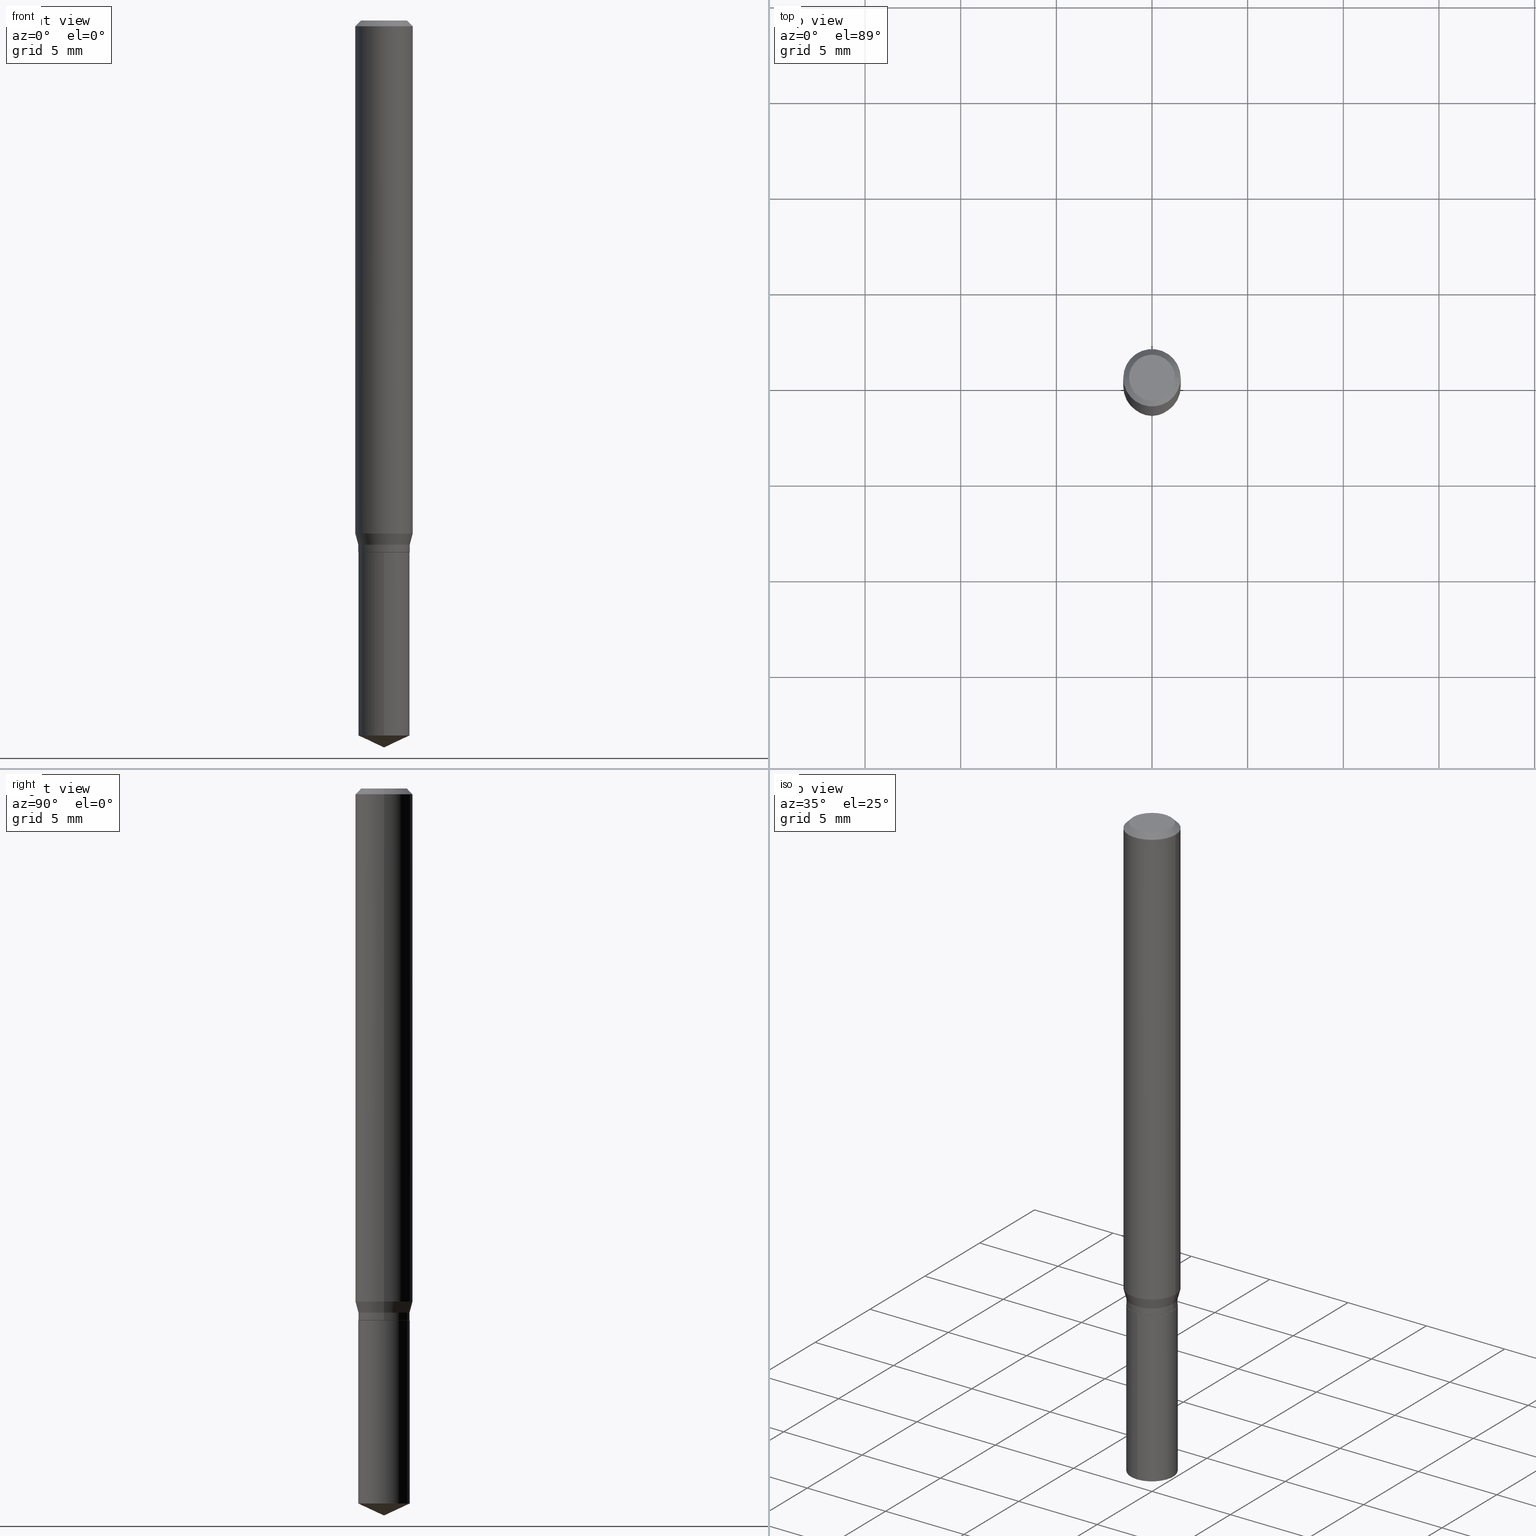
[diagram: canonical four-view strip — front | top / right | iso, engineering-drawing reading convention]
A machine part, canonical four-view strip (front | top / right | iso — engineering-drawing reading convention). The complete STEP part file that produces these views, byte-faithful:
ISO-10303-21;
HEADER;
FILE_DESCRIPTION (( 'STEP AP203' ),
    '1' );
FILE_NAME ('08027.STEP',
    '2024-04-24T09:15:37',
    ( '' ),
    ( '' ),
    'SwSTEP 2.0',
    'SolidWorks 2023',
    '' );
FILE_SCHEMA (( 'CONFIG_CONTROL_DESIGN' ));
ENDSEC;

DATA;
#1 = EDGE_CURVE ( 'NONE', #443, #419, #152, .T. ) ;
#2 = FACE_OUTER_BOUND ( 'NONE', #179, .T. ) ;
#3 = VECTOR ( 'NONE', #352, 39.37007874015748143 ) ;
#4 = CC_DESIGN_APPROVAL ( #400, ( #302 ) ) ;
#5 = ORIENTED_EDGE ( 'NONE', *, *, #410, .T. ) ;
#6 =( NAMED_UNIT ( * ) PLANE_ANGLE_UNIT ( ) SI_UNIT ( $, .RADIAN. ) );
#7 = DIRECTION ( 'NONE',  ( -2.445458899330790108E-29, 3.491495526022433205E-15, 1.000000000000000000 ) ) ;
#8 = DIRECTION ( 'NONE',  ( 0.2588190451025216277, 1.565188264969619995E-15, 0.9659258262890679791 ) ) ;
#9 = VECTOR ( 'NONE', #453, 39.37007874015748143 ) ;
#10 = DIRECTION ( 'NONE',  ( 1.000000000000000000, -6.982962677686265922E-15, 4.876176775795935232E-29 ) ) ;
#11 = DIRECTION ( 'NONE',  ( -1.000000000000000000, 6.982962677686265922E-15, -4.876176775795935793E-29 ) ) ;
#12 = EDGE_CURVE ( 'NONE', #145, #96, #191, .T. ) ;
#13 = DIRECTION ( 'NONE',  ( -2.445468806185136597E-29, 3.491481338843145583E-15, 1.000000000000000000 ) ) ;
#14 = EDGE_CURVE ( 'NONE', #332, #61, #310, .T. ) ;
#15 = PRODUCT_DEFINITION_SHAPE ( 'NONE', 'NONE',  #141 ) ;
#16 = FACE_OUTER_BOUND ( 'NONE', #413, .T. ) ;
#17 = CARTESIAN_POINT ( 'NONE',  ( -0.05905000000000006771, 4.195754854663396409E-16, -2.904631170795525045E-30 ) ) ;
#18 = CC_DESIGN_PERSON_AND_ORGANIZATION_ASSIGNMENT ( #161, #82, ( #302 ) ) ;
#19 = CARTESIAN_POINT ( 'NONE',  ( 0.05244999999999998969, -4.187682717808466844E-15, -1.094499999999999806 ) ) ;
#20 = DIRECTION ( 'NONE',  ( 0.7071067811866199593, -2.468850131083015945E-15, 0.7071067811864750752 ) ) ;
#21 = EDGE_LOOP ( 'NONE', ( #137, #291, #233, #140 ) ) ;
#22 = VECTOR ( 'NONE', #25, 39.37007874015748143 ) ;
#23 = DIRECTION ( 'NONE',  ( 1.000000000000000000, -6.982962677686262766E-15, 0.000000000000000000 ) ) ;
#24 = EDGE_LOOP ( 'NONE', ( #340, #411, #214, #229 ) ) ;
#25 = DIRECTION ( 'NONE',  ( -0.7071067811866199593, 7.493145998870616062E-15, 0.7071067811864750752 ) ) ;
#26 = EDGE_LOOP ( 'NONE', ( #450, #460, #344, #359 ) ) ;
#27 = DIRECTION ( 'NONE',  ( -2.445468806185136597E-29, 3.491481338843145583E-15, 1.000000000000000000 ) ) ;
#28 = ORIENTED_EDGE ( 'NONE', *, *, #436, .T. ) ;
#29 = CLOSED_SHELL ( 'NONE', ( #222, #461, #163, #177, #196 ) ) ;
#30 = CIRCLE ( 'NONE', #438, 0.05294999999999999707 ) ;
#31 = EDGE_CURVE ( 'NONE', #104, #371, #250, .T. ) ;
#32 = CARTESIAN_POINT ( 'NONE',  ( 2.676565608369631234E-29, -3.821426325363821984E-15, -1.094499999999999806 ) ) ;
#33 = ORIENTED_EDGE ( 'NONE', *, *, #393, .T. ) ;
#34 = DIRECTION ( 'NONE',  ( -2.445468806185136597E-29, 3.491481338843145583E-15, 1.000000000000000000 ) ) ;
#35 = DIRECTION ( 'NONE',  ( 1.000000000000000000, -6.982962677686265133E-15, 0.000000000000000000 ) ) ;
#36 = PERSON_AND_ORGANIZATION_ROLE ( 'creator' ) ;
#37 = ORIENTED_EDGE ( 'NONE', *, *, #426, .T. ) ;
#38 = CIRCLE ( 'NONE', #338, 0.05244999999999998969 ) ;
#39 = APPROVAL_STATUS ( 'not_yet_approved' ) ;
#40 = ORIENTED_EDGE ( 'NONE', *, *, #484, .T. ) ;
#41 = EDGE_CURVE ( 'NONE', #345, #488, #424, .T. ) ;
#42 = DIRECTION ( 'NONE',  ( -6.982962677686265922E-15, -1.000000000000000000, 5.159297438459420627E-15 ) ) ;
#43 = ORIENTED_EDGE ( 'NONE', *, *, #110, .F. ) ;
#44 = CARTESIAN_POINT ( 'NONE',  ( 3.598281099891054021E-29, -5.137402445753038506E-15, -1.471409009500692866 ) ) ;
#45 = CONICAL_SURFACE ( 'NONE', #360, 0.05244999999999998969, 0.7853981633975507526 ) ;
#46 = PRODUCT_DEFINITION_FORMATION_WITH_SPECIFIED_SOURCE ( 'ANY', '', #315, .NOT_KNOWN. ) ;
#47 = DIRECTION ( 'NONE',  ( -2.445468806185136597E-29, 3.491481338843145583E-15, 1.000000000000000000 ) ) ;
#48 = CARTESIAN_POINT ( 'NONE',  ( 2.676565608369631794E-29, -3.821426325363822773E-15, -1.094499999999999806 ) ) ;
#49 = CARTESIAN_POINT ( 'NONE',  ( -9.261924752013118283E-28, 1.322368428517963298E-13, 37.87397874015748300 ) ) ;
#50 = EDGE_CURVE ( 'NONE', #488, #483, #157, .T. ) ;
#51 = CYLINDRICAL_SURFACE ( 'NONE', #108, 0.05294999999999999707 ) ;
#52 = LOCAL_TIME ( 5, 15, 37.00000000000000000, #184 ) ;
#53 = CC_DESIGN_PERSON_AND_ORGANIZATION_ASSIGNMENT ( #373, #119, ( #141 ) ) ;
#54 = FACE_OUTER_BOUND ( 'NONE', #134, .T. ) ;
#55 = FACE_OUTER_BOUND ( 'NONE', #335, .T. ) ;
#56 = ORIENTED_EDGE ( 'NONE', *, *, #160, .F. ) ;
#57 = ADVANCED_FACE ( 'NONE', ( #221 ), #209, .T. ) ;
#58 = DIRECTION ( 'NONE',  ( -2.445468806185136597E-29, 3.491481338843145583E-15, 1.000000000000000000 ) ) ;
#59 = VECTOR ( 'NONE', #154, 39.37007874015748143 ) ;
#60 = VECTOR ( 'NONE', #398, 39.37007874015748143 ) ;
#61 = VERTEX_POINT ( 'NONE', #193 ) ;
#62 = CARTESIAN_POINT ( 'NONE',  ( -9.261924752013118283E-28, 1.322368428517963298E-13, 37.87397874015748300 ) ) ;
#63 = ORIENTED_EDGE ( 'NONE', *, *, #304, .T. ) ;
#64 = DIRECTION ( 'NONE',  ( 1.000000000000000000, -6.982962677686261977E-15, 0.000000000000000000 ) ) ;
#65 = ORIENTED_EDGE ( 'NONE', *, *, #66, .F. ) ;
#66 = EDGE_CURVE ( 'NONE', #371, #345, #147, .T. ) ;
#67 = CARTESIAN_POINT ( 'NONE',  ( 0.05904999999999999832, -4.463468013801466955E-16, -0.01181000000000007218 ) ) ;
#68 = ORIENTED_EDGE ( 'NONE', *, *, #31, .T. ) ;
#69 = AXIS2_PLACEMENT_3D ( 'NONE', #44, #342, #42 ) ;
#70 = APPROVAL_PERSON_ORGANIZATION ( #456, #465, #382 ) ;
#71 = EDGE_LOOP ( 'NONE', ( #56, #68, #174, #43 ) ) ;
#72 = CARTESIAN_POINT ( 'NONE',  ( 0.05904999999999999832, -4.535783407291118600E-16, -0.01181000000000007218 ) ) ;
#73 = CYLINDRICAL_SURFACE ( 'NONE', #414, 0.05905000000000006771 ) ;
#74 = PERSON_AND_ORGANIZATION ( #94, #109 ) ;
#75 = ADVANCED_FACE ( 'NONE', ( #232 ), #81, .T. ) ;
#76 = DIRECTION ( 'NONE',  ( -2.445468806185136877E-29, 3.491481338843145188E-15, 1.000000000000000000 ) ) ;
#77 = PERSON_AND_ORGANIZATION_ROLE ( 'design_owner' ) ;
#78 = ORIENTED_EDGE ( 'NONE', *, *, #393, .F. ) ;
#79 = ORIENTED_EDGE ( 'NONE', *, *, #149, .T. ) ;
#80 = PERSON_AND_ORGANIZATION ( #94, #109 ) ;
#81 = CYLINDRICAL_SURFACE ( 'NONE', #84, 0.05294999999999999707 ) ;
#82 = PERSON_AND_ORGANIZATION_ROLE ( 'classification_officer' ) ;
#83 = CARTESIAN_POINT ( 'NONE',  ( 3.658651059288795076E-29, -5.223626456482161457E-15, -1.496099999999999985 ) ) ;
#84 = AXIS2_PLACEMENT_3D ( 'NONE', #307, #385, #10 ) ;
#85 = VECTOR ( 'NONE', #20, 39.37007874015748143 ) ;
#86 = CC_DESIGN_SECURITY_CLASSIFICATION ( #302, ( #46 ) ) ;
#87 = CARTESIAN_POINT ( 'NONE',  ( 0.05244999999999998969, -4.187682717808466844E-15, -1.094499999999999806 ) ) ;
#88 = ADVANCED_FACE ( 'NONE', ( #2 ), #73, .T. ) ;
#89 = CARTESIAN_POINT ( 'NONE',  ( 3.762323785850089208E-16, 0.05294999999999484841, -1.471409009500693088 ) ) ;
#90 = CARTESIAN_POINT ( 'NONE',  ( 0.000000000000000000, 0.000000000000000000, 0.000000000000000000 ) ) ;
#91 = CC_DESIGN_DATE_AND_TIME_ASSIGNMENT ( #473, #475, ( #302 ) ) ;
#92 = APPLICATION_CONTEXT ( 'configuration controlled 3d designs of mechanical parts and assemblies' ) ;
#93 = CARTESIAN_POINT ( 'NONE',  ( 3.658672935554494692E-29, -5.223595400746700193E-15, -1.496099999999999985 ) ) ;
#94 = PERSON ( 'UNSPECIFIED', 'UNSPECIFIED', 'UNSPECIFIED', ('UNSPECIFIED'), ('UNSPECIFIED'), ('UNSPECIFIED') ) ;
#95 = CARTESIAN_POINT ( 'NONE',  ( 2.637682654351288218E-29, -3.765911772076216593E-15, -1.078600000000000003 ) ) ;
#96 = VERTEX_POINT ( 'NONE', #261 ) ;
#97 = EDGE_CURVE ( 'NONE', #488, #328, #478, .T. ) ;
#98 = CARTESIAN_POINT ( 'NONE',  ( 2.888098660104664204E-31, -4.123439461173780263E-17, -0.01181000000000007218 ) ) ;
#99 = ORIENTED_EDGE ( 'NONE', *, *, #287, .F. ) ;
#100 = CARTESIAN_POINT ( 'NONE',  ( -0.05905000000000013016, -3.266850933533403500E-15, -1.055834490073829457 ) ) ;
#101 = CLOSED_SHELL ( 'NONE', ( #219, #405, #88, #251, #283, #75, #333, #296, #57, #121, #205, #357 ) ) ;
#102 = EDGE_LOOP ( 'NONE', ( #63, #289 ) ) ;
#103 = LINE ( 'NONE', #286, #276 ) ;
#104 = VERTEX_POINT ( 'NONE', #303 ) ;
#105 = CARTESIAN_POINT ( 'NONE',  ( 0.05294999999999999707, -4.189428458477888347E-15, -1.093999999999999861 ) ) ;
#106 = ORIENTED_EDGE ( 'NONE', *, *, #470, .T. ) ;
#107 = CARTESIAN_POINT ( 'NONE',  ( 0.000000000000000000, 0.000000000000000000, 0.000000000000000000 ) ) ;
#108 = AXIS2_PLACEMENT_3D ( 'NONE', #351, #468, #123 ) ;
#109 = ORGANIZATION ( 'UNSPECIFIED', 'UNSPECIFIED', '' ) ;
#110 = EDGE_CURVE ( 'NONE', #463, #345, #420, .T. ) ;
#111 = CALENDAR_DATE ( 2024, 24, 4 ) ;
#112 = DIRECTION ( 'NONE',  ( -2.445468806185136597E-29, 3.491481338843145583E-15, 1.000000000000000000 ) ) ;
#113 = CARTESIAN_POINT ( 'NONE',  ( 0.05905000000000013016, -4.098770365117118307E-15, -1.055834490073829457 ) ) ;
#114 = ORIENTED_EDGE ( 'NONE', *, *, #372, .T. ) ;
#115 = CARTESIAN_POINT ( 'NONE',  ( -0.05294999999999999707, -3.416563799800335904E-15, -1.078600000000000003 ) ) ;
#116 = ORIENTED_EDGE ( 'NONE', *, *, #426, .F. ) ;
#117 = AXIS2_PLACEMENT_3D ( 'NONE', #390, #355, #397 ) ;
#118 = ORIENTED_EDGE ( 'NONE', *, *, #50, .F. ) ;
#119 = PERSON_AND_ORGANIZATION_ROLE ( 'creator' ) ;
#120 = CARTESIAN_POINT ( 'NONE',  ( 0.05294999999999999707, -3.697478737834877679E-16, 2.581935602783947644E-30 ) ) ;
#121 = ADVANCED_FACE ( 'NONE', ( #263 ), #418, .F. ) ;
#122 = APPROVAL_DATE_TIME ( #427, #400 ) ;
#123 = DIRECTION ( 'NONE',  ( -6.982962677686265922E-15, -1.000000000000000000, 2.579648719229710314E-15 ) ) ;
#124 = DIRECTION ( 'NONE',  ( -2.445468806185136597E-29, 3.491481338843145583E-15, 1.000000000000000000 ) ) ;
#125 = CIRCLE ( 'NONE', #237, 0.05294999999999999707 ) ;
#126 = DIRECTION ( 'NONE',  ( 6.439704144417028775E-15, 0.9063077870366519351, 0.4226182617406950559 ) ) ;
#127 = APPROVAL ( #146, 'UNSPECIFIED' ) ;
#128 = FACE_OUTER_BOUND ( 'NONE', #245, .T. ) ;
#129 = FACE_OUTER_BOUND ( 'NONE', #257, .T. ) ;
#130 = VECTOR ( 'NONE', #8, 39.37007874015748143 ) ;
#131 = DIRECTION ( 'NONE',  ( -2.445468806185136597E-29, 3.491481338843145583E-15, 1.000000000000000000 ) ) ;
#132 =( GEOMETRIC_REPRESENTATION_CONTEXT ( 3 ) GLOBAL_UNCERTAINTY_ASSIGNED_CONTEXT ( ( #471 ) ) GLOBAL_UNIT_ASSIGNED_CONTEXT ( ( #223, #6, #153 ) ) REPRESENTATION_CONTEXT ( 'NONE', 'WORKASPACE' ) );
#133 = DIRECTION ( 'NONE',  ( -2.445468806185136597E-29, 3.491481338843145583E-15, 1.000000000000000000 ) ) ;
#134 = EDGE_LOOP ( 'NONE', ( #185, #33 ) ) ;
#135 = CC_DESIGN_PERSON_AND_ORGANIZATION_ASSIGNMENT ( #375, #36, ( #46 ) ) ;
#136 = LINE ( 'NONE', #67, #227 ) ;
#137 = ORIENTED_EDGE ( 'NONE', *, *, #441, .F. ) ;
#138 = DIRECTION ( 'NONE',  ( 1.000000000000000000, -6.982962677686266711E-15, 4.876176775795936353E-29 ) ) ;
#139 = AXIS2_PLACEMENT_3D ( 'NONE', #422, #383, #305 ) ;
#140 = ORIENTED_EDGE ( 'NONE', *, *, #1, .F. ) ;
#141 = PRODUCT_DEFINITION ( 'UNKNOWN', '', #46, #278 ) ;
#142 = CARTESIAN_POINT ( 'NONE',  ( 2.676565608369631234E-29, -3.821426325363821984E-15, -1.094499999999999806 ) ) ;
#143 = ORIENTED_EDGE ( 'NONE', *, *, #41, .F. ) ;
#144 = DIRECTION ( 'NONE',  ( 0.000000000000000000, 0.000000000000000000, 1.000000000000000000 ) ) ;
#145 = VERTEX_POINT ( 'NONE', #89 ) ;
#146 = APPROVAL_STATUS ( 'not_yet_approved' ) ;
#147 = LINE ( 'NONE', #120, #59 ) ;
#148 = CONICAL_SURFACE ( 'NONE', #428, 0.05294999999999999707, 0.2617993877991502960 ) ;
#149 = EDGE_CURVE ( 'NONE', #155, #145, #435, .T. ) ;
#150 = AXIS2_PLACEMENT_3D ( 'NONE', #482, #365, #64 ) ;
#151 =( LENGTH_UNIT ( ) NAMED_UNIT ( * ) SI_UNIT ( $, .METRE. ) );
#152 = LINE ( 'NONE', #265, #9 ) ;
#153 =( NAMED_UNIT ( * ) SI_UNIT ( $, .STERADIAN. ) SOLID_ANGLE_UNIT ( ) );
#154 = DIRECTION ( 'NONE',  ( -2.445468806185136877E-29, 3.491481338843145188E-15, 1.000000000000000000 ) ) ;
#155 = VERTEX_POINT ( 'NONE', #239 ) ;
#156 = CARTESIAN_POINT ( 'NONE',  ( 2.888098660104664204E-31, -4.123439461173780263E-17, -0.01181000000000007218 ) ) ;
#157 = LINE ( 'NONE', #309, #198 ) ;
#158 = FACE_OUTER_BOUND ( 'NONE', #406, .T. ) ;
#159 = LINE ( 'NONE', #17, #3 ) ;
#160 = EDGE_CURVE ( 'NONE', #104, #463, #350, .T. ) ;
#161 = PERSON_AND_ORGANIZATION ( #94, #109 ) ;
#162 = DIRECTION ( 'NONE',  ( 1.000000000000000000, -6.982962677686262766E-15, 0.000000000000000000 ) ) ;
#163 = ADVANCED_FACE ( 'NONE', ( #129 ), #486, .T. ) ;
#164 = AXIS2_PLACEMENT_3D ( 'NONE', #319, #167, #206 ) ;
#165 = CONICAL_SURFACE ( 'NONE', #389, 84.42940631927426409, 1.134464013796315562 ) ;
#166 = APPROVAL_STATUS ( 'not_yet_approved' ) ;
#167 = DIRECTION ( 'NONE',  ( -2.438088387897960049E-29, 3.491481338843145188E-15, 1.000000000000000000 ) ) ;
#168 = PLANE ( 'NONE',  #377 ) ;
#169 = DIRECTION ( 'NONE',  ( 1.000000000000000000, -6.982962677686262766E-15, 0.000000000000000000 ) ) ;
#170 = ORIENTED_EDGE ( 'NONE', *, *, #337, .F. ) ;
#171 = AXIS2_PLACEMENT_3D ( 'NONE', #449, #133, #138 ) ;
#172 = DIRECTION ( 'NONE',  ( -0.2588190451025216277, 5.211531920934551831E-15, 0.9659258262890679791 ) ) ;
#173 = LOCAL_TIME ( 5, 15, 37.00000000000000000, #434 ) ;
#174 = ORIENTED_EDGE ( 'NONE', *, *, #66, .T. ) ;
#175 = CARTESIAN_POINT ( 'NONE',  ( -3.697478737834609959E-16, -0.05295000000000382040, -1.094499999999999806 ) ) ;
#176 = VERTEX_POINT ( 'NONE', #87 ) ;
#177 = ADVANCED_FACE ( 'NONE', ( #243 ), #238, .T. ) ;
#178 = DIRECTION ( 'NONE',  ( 1.000000000000000000, -6.982962677686266711E-15, 4.876185090822587894E-29 ) ) ;
#179 = EDGE_LOOP ( 'NONE', ( #490, #452, #364, #118 ) ) ;
#180 = DIRECTION ( 'NONE',  ( 1.000000000000000000, -6.982962677686265133E-15, 0.000000000000000000 ) ) ;
#181 = CIRCLE ( 'NONE', #241, 0.05294999999999999707 ) ;
#182 = APPROVAL_PERSON_ORGANIZATION ( #387, #400, #467 ) ;
#183 = ORIENTED_EDGE ( 'NONE', *, *, #97, .F. ) ;
#184 = COORDINATED_UNIVERSAL_TIME_OFFSET ( 5, 0, .BEHIND. ) ;
#185 = ORIENTED_EDGE ( 'NONE', *, *, #14, .T. ) ;
#186 = CALENDAR_DATE ( 2024, 24, 4 ) ;
#187 = EDGE_CURVE ( 'NONE', #328, #419, #159, .T. ) ;
#188 = CARTESIAN_POINT ( 'NONE',  ( 2.888098660104664204E-31, -4.123439461173780263E-17, -0.01181000000000007218 ) ) ;
#189 = PERSON_AND_ORGANIZATION ( #94, #109 ) ;
#190 = CARTESIAN_POINT ( 'NONE',  ( 2.582010309969939758E-29, -3.686426418999744176E-15, -1.055834490073829457 ) ) ;
#191 = CIRCLE ( 'NONE', #69, 0.05294999999999999707 ) ;
#192 = DIRECTION ( 'NONE',  ( 1.000000000000000000, -6.982962677686266711E-15, 0.000000000000000000 ) ) ;
#193 = CARTESIAN_POINT ( 'NONE',  ( 3.762323785850089701E-16, 0.05294999999999616680, -1.094500000000000028 ) ) ;
#194 = LENGTH_MEASURE_WITH_UNIT ( LENGTH_MEASURE( 0.02539999999999999897 ), #151 );
#195 = CARTESIAN_POINT ( 'NONE',  ( 0.05294999999999999707, -4.135659645859704460E-15, -1.078600000000000003 ) ) ;
#196 = ADVANCED_FACE ( 'NONE', ( #54 ), #168, .F. ) ;
#197 = ORIENTED_EDGE ( 'NONE', *, *, #287, .T. ) ;
#198 = VECTOR ( 'NONE', #76, 39.37007874015748143 ) ;
#199 = CONICAL_SURFACE ( 'NONE', #361, 0.05904999999999999832, 0.7853981633974452814 ) ;
#200 = FACE_OUTER_BOUND ( 'NONE', #253, .T. ) ;
#201 = DIRECTION ( 'NONE',  ( 1.000000000000000000, -6.982962677686266711E-15, 0.000000000000000000 ) ) ;
#202 = DIRECTION ( 'NONE',  ( 6.982962677686265922E-15, 1.000000000000000000, -3.491495526022433599E-15 ) ) ;
#203 = AXIS2_PLACEMENT_3D ( 'NONE', #142, #131, #169 ) ;
#204 = CARTESIAN_POINT ( 'NONE',  ( 2.676565608369631234E-29, -3.821426325363821984E-15, -1.094499999999999806 ) ) ;
#205 = ADVANCED_FACE ( 'NONE', ( #16 ), #388, .F. ) ;
#206 = DIRECTION ( 'NONE',  ( 1.000000000000000000, -6.982962677686265922E-15, 4.876176775795935793E-29 ) ) ;
#207 = LINE ( 'NONE', #367, #275 ) ;
#208 = VERTEX_POINT ( 'NONE', #312 ) ;
#209 = CONICAL_SURFACE ( 'NONE', #316, 0.05904999999999999832, 0.7853981633974452814 ) ;
#210 = CARTESIAN_POINT ( 'NONE',  ( 2.676565608369631794E-29, -3.821426325363822773E-15, -1.094499999999999806 ) ) ;
#211 = DIMENSIONAL_EXPONENTS ( 1.000000000000000000, 0.000000000000000000, 0.000000000000000000, 0.000000000000000000, 0.000000000000000000, 0.000000000000000000, 0.000000000000000000 ) ;
#212 = VERTEX_POINT ( 'NONE', #469 ) ;
#213 = DIRECTION ( 'NONE',  ( -2.445458899330790108E-29, 3.491495526022433599E-15, 1.000000000000000000 ) ) ;
#214 = ORIENTED_EDGE ( 'NONE', *, *, #41, .T. ) ;
#215 = DIRECTION ( 'NONE',  ( -1.000000000000000000, 6.982962677686266711E-15, 0.000000000000000000 ) ) ;
#216 = ORIENTED_EDGE ( 'NONE', *, *, #14, .F. ) ;
#217 = CARTESIAN_POINT ( 'NONE',  ( 3.762323785849997010E-16, 0.05294999999999616680, -1.094500000000000028 ) ) ;
#218 = ORIENTED_EDGE ( 'NONE', *, *, #346, .T. ) ;
#219 = ADVANCED_FACE ( 'NONE', ( #200 ), #45, .T. ) ;
#220 = DATE_AND_TIME ( #298, #362 ) ;
#221 = FACE_OUTER_BOUND ( 'NONE', #348, .T. ) ;
#222 = ADVANCED_FACE ( 'NONE', ( #158 ), #51, .T. ) ;
#223 =( CONVERSION_BASED_UNIT ( 'INCH', #194 ) LENGTH_UNIT ( ) NAMED_UNIT ( #211 ) );
#224 = DIRECTION ( 'NONE',  ( 1.000000000000000000, -6.982962677686261977E-15, 0.000000000000000000 ) ) ;
#225 = DIRECTION ( 'NONE',  ( 2.445468806185136597E-29, -3.491481338843145583E-15, -1.000000000000000000 ) ) ;
#226 = EDGE_CURVE ( 'NONE', #483, #419, #395, .T. ) ;
#227 = VECTOR ( 'NONE', #401, 39.37007874015748143 ) ;
#228 = CIRCLE ( 'NONE', #260, 0.05904999999999999832 ) ;
#229 = ORIENTED_EDGE ( 'NONE', *, *, #444, .F. ) ;
#230 = CC_DESIGN_PERSON_AND_ORGANIZATION_ASSIGNMENT ( #74, #77, ( #315 ) ) ;
#231 = ORIENTED_EDGE ( 'NONE', *, *, #277, .T. ) ;
#232 = FACE_OUTER_BOUND ( 'NONE', #71, .T. ) ;
#233 = ORIENTED_EDGE ( 'NONE', *, *, #226, .T. ) ;
#234 = CALENDAR_DATE ( 2024, 24, 4 ) ;
#235 = DIRECTION ( 'NONE',  ( 2.445458899330789267E-29, -3.491495526022433599E-15, -1.000000000000000000 ) ) ;
#236 = AXIS2_PLACEMENT_3D ( 'NONE', #477, #487, #178 ) ;
#237 = AXIS2_PLACEMENT_3D ( 'NONE', #210, #323, #320 ) ;
#238 = CYLINDRICAL_SURFACE ( 'NONE', #117, 0.05294999999999999707 ) ;
#239 = CARTESIAN_POINT ( 'NONE',  ( 3.658651059288794515E-29, -5.223626456482161457E-15, -1.496099999999999985 ) ) ;
#240 = DIRECTION ( 'NONE',  ( 1.000000000000000000, -6.982962677686265922E-15, 4.876176775795935232E-29 ) ) ;
#241 = AXIS2_PLACEMENT_3D ( 'NONE', #432, #282, #280 ) ;
#242 = LOCAL_TIME ( 5, 15, 37.00000000000000000, #300 ) ;
#243 = FACE_OUTER_BOUND ( 'NONE', #297, .T. ) ;
#244 = LINE ( 'NONE', #256, #22 ) ;
#245 = EDGE_LOOP ( 'NONE', ( #114, #321, #366, #65 ) ) ;
#246 = MANIFOLD_SOLID_BREP ( 'Body-Move/Copy2[2]', #101 ) ;
#247 = ADVANCED_BREP_SHAPE_REPRESENTATION ( '08027', ( #408, #246, #285 ), #132 ) ;
#248 = FACE_OUTER_BOUND ( 'NONE', #26, .T. ) ;
#249 = ORIENTED_EDGE ( 'NONE', *, *, #12, .F. ) ;
#250 = CIRCLE ( 'NONE', #139, 0.05294999999999999707 ) ;
#251 = ADVANCED_FACE ( 'NONE', ( #394 ), #447, .T. ) ;
#252 = DIRECTION ( 'NONE',  ( 1.000000000000000000, -6.982962677686261977E-15, 0.000000000000000000 ) ) ;
#253 = EDGE_LOOP ( 'NONE', ( #106, #37, #440, #272 ) ) ;
#254 = CARTESIAN_POINT ( 'NONE',  ( 0.05294999999999999707, -4.135659645859704460E-15, -1.078600000000000003 ) ) ;
#255 = ORIENTED_EDGE ( 'NONE', *, *, #458, .T. ) ;
#256 = CARTESIAN_POINT ( 'NONE',  ( -0.05244999999999998969, -3.448746660457649461E-15, -1.094499999999999806 ) ) ;
#257 = EDGE_LOOP ( 'NONE', ( #384, #399, #249 ) ) ;
#258 = DIRECTION ( 'NONE',  ( -2.445468806185136597E-29, 3.491481338843145583E-15, 1.000000000000000000 ) ) ;
#259 = AXIS2_PLACEMENT_3D ( 'NONE', #90, #476, #240 ) ;
#260 = AXIS2_PLACEMENT_3D ( 'NONE', #156, #34, #192 ) ;
#261 = CARTESIAN_POINT ( 'NONE',  ( -3.697478737834517268E-16, -0.05295000000000512491, -1.471409009500692644 ) ) ;
#262 = DATE_AND_TIME ( #111, #242 ) ;
#263 = FACE_OUTER_BOUND ( 'NONE', #102, .T. ) ;
#264 = DIRECTION ( 'NONE',  ( 1.000000000000000000, 0.000000000000000000, 0.000000000000000000 ) ) ;
#265 = CARTESIAN_POINT ( 'NONE',  ( -0.05904999999999999832, 3.711095515056362547E-16, -0.01181000000000007218 ) ) ;
#266 = APPLICATION_PROTOCOL_DEFINITION ( 'international standard', 'config_control_design', 1994, #407 ) ;
#267 = EDGE_CURVE ( 'NONE', #155, #96, #472, .T. ) ;
#268 = ORIENTED_EDGE ( 'NONE', *, *, #12, .T. ) ;
#269 = AXIS2_PLACEMENT_3D ( 'NONE', #317, #274, #11 ) ;
#270 = CC_DESIGN_APPROVAL ( #465, ( #141 ) ) ;
#271 = DATE_AND_TIME ( #186, #52 ) ;
#272 = ORIENTED_EDGE ( 'NONE', *, *, #346, .F. ) ;
#273 = CARTESIAN_POINT ( 'NONE',  ( 2.637682654351288218E-29, -3.765911772076216593E-15, -1.078600000000000003 ) ) ;
#274 = DIRECTION ( 'NONE',  ( 2.438088387897960049E-29, -3.491481338843145188E-15, -1.000000000000000000 ) ) ;
#275 = VECTOR ( 'NONE', #213, 39.37007874015748143 ) ;
#276 = VECTOR ( 'NONE', #172, 39.37007874015748143 ) ;
#277 = EDGE_CURVE ( 'NONE', #96, #145, #181, .T. ) ;
#278 = DESIGN_CONTEXT ( 'detailed design', #92, 'design' ) ;
#279 = DIRECTION ( 'NONE',  ( -6.328713451373374112E-15, -0.9063077870366490485, 0.4226182617407013287 ) ) ;
#280 = DIRECTION ( 'NONE',  ( -6.982962677686265922E-15, -1.000000000000000000, 5.159297438459420627E-15 ) ) ;
#281 = SECURITY_CLASSIFICATION_LEVEL ( 'unclassified' ) ;
#282 = DIRECTION ( 'NONE',  ( -2.445458899330790108E-29, 3.491495526022433205E-15, 1.000000000000000000 ) ) ;
#283 = ADVANCED_FACE ( 'NONE', ( #128 ), #433, .T. ) ;
#284 = AXIS2_PLACEMENT_3D ( 'NONE', #457, #112, #224 ) ;
#285 = AXIS2_PLACEMENT_3D ( 'NONE', #334, #144, #264 ) ;
#286 = CARTESIAN_POINT ( 'NONE',  ( -0.05294999999999999707, -3.389679393491243566E-15, -1.078600000000000003 ) ) ;
#287 = EDGE_CURVE ( 'NONE', #212, #176, #38, .T. ) ;
#288 = FACE_OUTER_BOUND ( 'NONE', #21, .T. ) ;
#289 = ORIENTED_EDGE ( 'NONE', *, *, #441, .T. ) ;
#290 = DIRECTION ( 'NONE',  ( -2.445468806185136597E-29, 3.491481338843145583E-15, 1.000000000000000000 ) ) ;
#291 = ORIENTED_EDGE ( 'NONE', *, *, #337, .T. ) ;
#292 = AXIS2_PLACEMENT_3D ( 'NONE', #190, #374, #35 ) ;
#293 = FACE_OUTER_BOUND ( 'NONE', #24, .T. ) ;
#294 = ORIENTED_EDGE ( 'NONE', *, *, #470, .F. ) ;
#295 = FACE_OUTER_BOUND ( 'NONE', #485, .T. ) ;
#296 = ADVANCED_FACE ( 'NONE', ( #248 ), #325, .T. ) ;
#297 = EDGE_LOOP ( 'NONE', ( #368, #268, #386, #78 ) ) ;
#298 = CALENDAR_DATE ( 2024, 24, 4 ) ;
#299 = DIRECTION ( 'NONE',  ( 1.000000000000000000, -6.982962677686266711E-15, 4.876176775795936353E-29 ) ) ;
#300 = COORDINATED_UNIVERSAL_TIME_OFFSET ( 5, 0, .BEHIND. ) ;
#301 = AXIS2_PLACEMENT_3D ( 'NONE', #49, #429, #311 ) ;
#302 = SECURITY_CLASSIFICATION ( '', '', #281 ) ;
#303 = CARTESIAN_POINT ( 'NONE',  ( -0.05294999999999999707, -3.416563799800335904E-15, -1.093999999999999861 ) ) ;
#304 = EDGE_CURVE ( 'NONE', #443, #208, #437, .T. ) ;
#305 = DIRECTION ( 'NONE',  ( 1.000000000000000000, -6.982962677686261977E-15, 0.000000000000000000 ) ) ;
#306 = CC_DESIGN_PERSON_AND_ORGANIZATION_ASSIGNMENT ( #189, #313, ( #46 ) ) ;
#307 = CARTESIAN_POINT ( 'NONE',  ( 0.000000000000000000, 0.000000000000000000, 0.000000000000000000 ) ) ;
#308 = DIRECTION ( 'NONE',  ( 1.000000000000000000, -6.982962677686262766E-15, 0.000000000000000000 ) ) ;
#309 = CARTESIAN_POINT ( 'NONE',  ( 0.05905000000000006771, -4.123439461173745257E-16, 2.879382386107503723E-30 ) ) ;
#310 = CIRCLE ( 'NONE', #403, 0.05294999999999999707 ) ;
#311 = DIRECTION ( 'NONE',  ( -6.982962677686266711E-15, -1.000000000000000000, 3.520397390770457025E-15 ) ) ;
#312 = CARTESIAN_POINT ( 'NONE',  ( 0.04724000000000000421, -3.852183633974369345E-16, -3.380025165621689721E-19 ) ) ;
#313 = PERSON_AND_ORGANIZATION_ROLE ( 'design_supplier' ) ;
#314 = DIRECTION ( 'NONE',  ( 1.000000000000000000, -6.982962677686261977E-15, 0.000000000000000000 ) ) ;
#315 = PRODUCT ( '08027', '08027', '', ( #343 ) ) ;
#316 = AXIS2_PLACEMENT_3D ( 'NONE', #188, #225, #466 ) ;
#317 = CARTESIAN_POINT ( 'NONE',  ( 4.132873053354867254E-48, -5.900647395337818946E-34, -1.690012582823346072E-19 ) ) ;
#318 = EDGE_CURVE ( 'NONE', #96, #332, #207, .T. ) ;
#319 = CARTESIAN_POINT ( 'NONE',  ( 4.666948037326907598E-29, -9.710854015644555448E-16, -1.094499999999999806 ) ) ;
#320 = DIRECTION ( 'NONE',  ( -6.982962677686265922E-15, -1.000000000000000000, 2.579648719229710314E-15 ) ) ;
#321 = ORIENTED_EDGE ( 'NONE', *, *, #160, .T. ) ;
#322 = CIRCLE ( 'NONE', #150, 0.05294999999999999707 ) ;
#323 = DIRECTION ( 'NONE',  ( -2.445458899330790108E-29, 3.491495526022433205E-15, 1.000000000000000000 ) ) ;
#324 = ORIENTED_EDGE ( 'NONE', *, *, #31, .F. ) ;
#325 = CYLINDRICAL_SURFACE ( 'NONE', #171, 0.05905000000000006771 ) ;
#326 = ORIENTED_EDGE ( 'NONE', *, *, #267, .F. ) ;
#327 = DIRECTION ( 'NONE',  ( 1.000000000000000000, -6.982962677686266711E-15, 4.876185090822587894E-29 ) ) ;
#328 = VERTEX_POINT ( 'NONE', #100 ) ;
#329 = VECTOR ( 'NONE', #126, 39.37007874015748854 ) ;
#330 = CC_DESIGN_APPROVAL ( #127, ( #46 ) ) ;
#331 = LINE ( 'NONE', #19, #85 ) ;
#332 = VERTEX_POINT ( 'NONE', #175 ) ;
#333 = ADVANCED_FACE ( 'NONE', ( #293 ), #148, .T. ) ;
#334 = CARTESIAN_POINT ( 'NONE',  ( 0.000000000000000000, 0.000000000000000000, 0.000000000000000000 ) ) ;
#335 = EDGE_LOOP ( 'NONE', ( #326, #79, #446 ) ) ;
#336 = DIRECTION ( 'NONE',  ( -2.445468806185136597E-29, 3.491481338843145583E-15, 1.000000000000000000 ) ) ;
#337 = EDGE_CURVE ( 'NONE', #208, #483, #136, .T. ) ;
#338 = AXIS2_PLACEMENT_3D ( 'NONE', #204, #409, #23 ) ;
#339 = APPROVAL_PERSON_ORGANIZATION ( #80, #127, #489 ) ;
#340 = ORIENTED_EDGE ( 'NONE', *, *, #410, .F. ) ;
#341 = APPROVAL_DATE_TIME ( #220, #465 ) ;
#342 = DIRECTION ( 'NONE',  ( -2.445458899330790108E-29, 3.491495526022433205E-15, 1.000000000000000000 ) ) ;
#343 = MECHANICAL_CONTEXT ( 'NONE', #407, 'mechanical' ) ;
#344 = ORIENTED_EDGE ( 'NONE', *, *, #50, .T. ) ;
#345 = VERTEX_POINT ( 'NONE', #254 ) ;
#346 = EDGE_CURVE ( 'NONE', #176, #371, #331, .T. ) ;
#347 = SHAPE_DEFINITION_REPRESENTATION ( #15, #247 ) ;
#348 = EDGE_LOOP ( 'NONE', ( #170, #481, #402, #40 ) ) ;
#349 = CC_DESIGN_DATE_AND_TIME_ASSIGNMENT ( #271, #423, ( #141 ) ) ;
#350 = LINE ( 'NONE', #392, #353 ) ;
#351 = CARTESIAN_POINT ( 'NONE',  ( 2.676565608369631794E-29, -3.821426325363822773E-15, -1.094499999999999806 ) ) ;
#352 = DIRECTION ( 'NONE',  ( -2.445468806185136877E-29, 3.491481338843145188E-15, 1.000000000000000000 ) ) ;
#353 = VECTOR ( 'NONE', #425, 39.37007874015748143 ) ;
#354 = CALENDAR_DATE ( 2024, 24, 4 ) ;
#355 = DIRECTION ( 'NONE',  ( -2.445458899330790108E-29, 3.491495526022433205E-15, 1.000000000000000000 ) ) ;
#356 = CARTESIAN_POINT ( 'NONE',  ( 2.676565608369631234E-29, -3.821426325363821984E-15, -1.094499999999999806 ) ) ;
#357 = ADVANCED_FACE ( 'NONE', ( #295 ), #421, .T. ) ;
#358 = CARTESIAN_POINT ( 'NONE',  ( 2.637682654351288218E-29, -3.765911772076216593E-15, -1.078600000000000003 ) ) ;
#359 = ORIENTED_EDGE ( 'NONE', *, *, #484, .F. ) ;
#360 = AXIS2_PLACEMENT_3D ( 'NONE', #356, #124, #162 ) ;
#361 = AXIS2_PLACEMENT_3D ( 'NONE', #98, #442, #215 ) ;
#362 = LOCAL_TIME ( 5, 15, 37.00000000000000000, #370 ) ;
#363 = CARTESIAN_POINT ( 'NONE',  ( 2.582010309969939758E-29, -3.686426418999744176E-15, -1.055834490073829457 ) ) ;
#364 = ORIENTED_EDGE ( 'NONE', *, *, #226, .F. ) ;
#365 = DIRECTION ( 'NONE',  ( -2.445468806185136597E-29, 3.491481338843145583E-15, 1.000000000000000000 ) ) ;
#366 = ORIENTED_EDGE ( 'NONE', *, *, #436, .F. ) ;
#367 = CARTESIAN_POINT ( 'NONE',  ( -3.697478737834609959E-16, -0.05295000000000382040, -1.094499999999999806 ) ) ;
#368 = ORIENTED_EDGE ( 'NONE', *, *, #458, .F. ) ;
#369 = AXIS2_PLACEMENT_3D ( 'NONE', #474, #13, #201 ) ;
#370 = COORDINATED_UNIVERSAL_TIME_OFFSET ( 5, 0, .BEHIND. ) ;
#371 = VERTEX_POINT ( 'NONE', #105 ) ;
#372 = EDGE_CURVE ( 'NONE', #371, #104, #322, .T. ) ;
#373 = PERSON_AND_ORGANIZATION ( #94, #109 ) ;
#374 = DIRECTION ( 'NONE',  ( -2.445468806185136597E-29, 3.491481338843145583E-15, 1.000000000000000000 ) ) ;
#375 = PERSON_AND_ORGANIZATION ( #94, #109 ) ;
#376 = ORIENTED_EDGE ( 'NONE', *, *, #318, .F. ) ;
#377 = AXIS2_PLACEMENT_3D ( 'NONE', #48, #235, #202 ) ;
#378 = DIRECTION ( 'NONE',  ( -2.445458899330790108E-29, 3.491495526022433205E-15, 1.000000000000000000 ) ) ;
#379 = CIRCLE ( 'NONE', #415, 0.04724000000000000421 ) ;
#380 = CARTESIAN_POINT ( 'NONE',  ( 2.676565608369631794E-29, -3.821426325363822773E-15, -1.094499999999999806 ) ) ;
#381 = EDGE_LOOP ( 'NONE', ( #28, #5, #183, #143 ) ) ;
#382 = APPROVAL_ROLE ( '' ) ;
#383 = DIRECTION ( 'NONE',  ( -2.445468806185136597E-29, 3.491481338843145583E-15, 1.000000000000000000 ) ) ;
#384 = ORIENTED_EDGE ( 'NONE', *, *, #149, .F. ) ;
#385 = DIRECTION ( 'NONE',  ( -2.445468806185136597E-29, 3.491481338843145583E-15, 1.000000000000000000 ) ) ;
#386 = ORIENTED_EDGE ( 'NONE', *, *, #318, .T. ) ;
#387 = PERSON_AND_ORGANIZATION ( #94, #109 ) ;
#388 = PLANE ( 'NONE',  #164 ) ;
#389 = AXIS2_PLACEMENT_3D ( 'NONE', #62, #378, #459 ) ;
#390 = CARTESIAN_POINT ( 'NONE',  ( 2.676565608369631794E-29, -3.821426325363822773E-15, -1.094499999999999806 ) ) ;
#391 = COORDINATED_UNIVERSAL_TIME_OFFSET ( 5, 0, .BEHIND. ) ;
#392 = CARTESIAN_POINT ( 'NONE',  ( -0.05294999999999999707, 3.762323785849730276E-16, -2.604576130289972292E-30 ) ) ;
#393 = EDGE_CURVE ( 'NONE', #61, #332, #125, .T. ) ;
#394 = FACE_OUTER_BOUND ( 'NONE', #381, .T. ) ;
#395 = CIRCLE ( 'NONE', #369, 0.05904999999999999832 ) ;
#396 = LOCAL_TIME ( 5, 15, 37.00000000000000000, #391 ) ;
#397 = DIRECTION ( 'NONE',  ( -6.982962677686265922E-15, -1.000000000000000000, 2.579648719229710314E-15 ) ) ;
#398 = DIRECTION ( 'NONE',  ( -2.445458899330790108E-29, 3.491495526022433599E-15, 1.000000000000000000 ) ) ;
#399 = ORIENTED_EDGE ( 'NONE', *, *, #267, .T. ) ;
#400 = APPROVAL ( #166, 'UNSPECIFIED' ) ;
#401 = DIRECTION ( 'NONE',  ( 0.7071067811865453523, -7.319954787623248157E-15, -0.7071067811865496822 ) ) ;
#402 = ORIENTED_EDGE ( 'NONE', *, *, #1, .T. ) ;
#403 = AXIS2_PLACEMENT_3D ( 'NONE', #380, #7, #416 ) ;
#404 = CARTESIAN_POINT ( 'NONE',  ( -0.04724000000000000421, 3.504923541997677355E-16, -3.380025165670481712E-19 ) ) ;
#405 = ADVANCED_FACE ( 'NONE', ( #288 ), #199, .T. ) ;
#406 = EDGE_LOOP ( 'NONE', ( #231, #255, #216, #376 ) ) ;
#407 = APPLICATION_CONTEXT ( 'configuration controlled 3d designs of mechanical parts and assemblies' ) ;
#408 = MANIFOLD_SOLID_BREP ( 'Body-Move/Copy2[1]', #29 ) ;
#409 = DIRECTION ( 'NONE',  ( -2.445468806185136597E-29, 3.491481338843145583E-15, 1.000000000000000000 ) ) ;
#410 = EDGE_CURVE ( 'NONE', #463, #328, #103, .T. ) ;
#411 = ORIENTED_EDGE ( 'NONE', *, *, #110, .T. ) ;
#412 = CARTESIAN_POINT ( 'NONE',  ( 8.265746106709734507E-48, -1.180129479067563789E-33, -3.380025165646692144E-19 ) ) ;
#413 = EDGE_LOOP ( 'NONE', ( #294, #99 ) ) ;
#414 = AXIS2_PLACEMENT_3D ( 'NONE', #107, #336, #299 ) ;
#415 = AXIS2_PLACEMENT_3D ( 'NONE', #412, #58, #327 ) ;
#416 = DIRECTION ( 'NONE',  ( -6.982962677686265922E-15, -1.000000000000000000, 2.579648719229710314E-15 ) ) ;
#417 = APPROVAL_DATE_TIME ( #262, #127 ) ;
#418 = PLANE ( 'NONE',  #269 ) ;
#419 = VERTEX_POINT ( 'NONE', #439 ) ;
#420 = CIRCLE ( 'NONE', #284, 0.05294999999999999707 ) ;
#421 = CONICAL_SURFACE ( 'NONE', #203, 0.05244999999999998969, 0.7853981633975507526 ) ;
#422 = CARTESIAN_POINT ( 'NONE',  ( 2.675342873966538993E-29, -3.819680584694400481E-15, -1.093999999999999861 ) ) ;
#423 = DATE_TIME_ROLE ( 'creation_date' ) ;
#424 = LINE ( 'NONE', #195, #130 ) ;
#425 = DIRECTION ( 'NONE',  ( -2.445468806185136877E-29, 3.491481338843145188E-15, 1.000000000000000000 ) ) ;
#426 = EDGE_CURVE ( 'NONE', #212, #104, #244, .T. ) ;
#427 = DATE_AND_TIME ( #354, #173 ) ;
#428 = AXIS2_PLACEMENT_3D ( 'NONE', #358, #27, #252 ) ;
#429 = DIRECTION ( 'NONE',  ( -2.445458899330790108E-29, 3.491495526022433205E-15, 1.000000000000000000 ) ) ;
#430 = CIRCLE ( 'NONE', #455, 0.05905000000000013016 ) ;
#431 = PRODUCT_RELATED_PRODUCT_CATEGORY ( 'detail', '', ( #315 ) ) ;
#432 = CARTESIAN_POINT ( 'NONE',  ( 3.598281099891054021E-29, -5.137402445753038506E-15, -1.471409009500692866 ) ) ;
#433 = CYLINDRICAL_SURFACE ( 'NONE', #259, 0.05294999999999999707 ) ;
#434 = COORDINATED_UNIVERSAL_TIME_OFFSET ( 5, 0, .BEHIND. ) ;
#435 = LINE ( 'NONE', #93, #329 ) ;
#436 = EDGE_CURVE ( 'NONE', #345, #463, #30, .T. ) ;
#437 = CIRCLE ( 'NONE', #236, 0.04724000000000000421 ) ;
#438 = AXIS2_PLACEMENT_3D ( 'NONE', #95, #451, #480 ) ;
#439 = CARTESIAN_POINT ( 'NONE',  ( -0.05904999999999999832, -1.444254921339400473E-15, -0.01181000000000007218 ) ) ;
#440 = ORIENTED_EDGE ( 'NONE', *, *, #372, .F. ) ;
#441 = EDGE_CURVE ( 'NONE', #208, #443, #379, .T. ) ;
#442 = DIRECTION ( 'NONE',  ( 2.445468806185136597E-29, -3.491481338843145583E-15, -1.000000000000000000 ) ) ;
#443 = VERTEX_POINT ( 'NONE', #404 ) ;
#444 = EDGE_CURVE ( 'NONE', #328, #488, #430, .T. ) ;
#445 = LINE ( 'NONE', #217, #60 ) ;
#446 = ORIENTED_EDGE ( 'NONE', *, *, #277, .F. ) ;
#447 = CONICAL_SURFACE ( 'NONE', #464, 0.05294999999999999707, 0.2617993877991502960 ) ;
#448 = CIRCLE ( 'NONE', #479, 0.05244999999999998969 ) ;
#449 = CARTESIAN_POINT ( 'NONE',  ( 0.000000000000000000, 0.000000000000000000, 0.000000000000000000 ) ) ;
#450 = ORIENTED_EDGE ( 'NONE', *, *, #187, .F. ) ;
#451 = DIRECTION ( 'NONE',  ( -2.445468806185136597E-29, 3.491481338843145583E-15, 1.000000000000000000 ) ) ;
#452 = ORIENTED_EDGE ( 'NONE', *, *, #187, .T. ) ;
#453 = DIRECTION ( 'NONE',  ( -0.7071067811865453523, 2.468850131082234184E-15, -0.7071067811865496822 ) ) ;
#454 = VECTOR ( 'NONE', #279, 39.37007874015748143 ) ;
#455 = AXIS2_PLACEMENT_3D ( 'NONE', #363, #290, #180 ) ;
#456 = PERSON_AND_ORGANIZATION ( #94, #109 ) ;
#457 = CARTESIAN_POINT ( 'NONE',  ( 2.637682654351288218E-29, -3.765911772076216593E-15, -1.078600000000000003 ) ) ;
#458 = EDGE_CURVE ( 'NONE', #145, #61, #445, .T. ) ;
#459 = DIRECTION ( 'NONE',  ( -6.982962677686266711E-15, -1.000000000000000000, 3.520397390770457025E-15 ) ) ;
#460 = ORIENTED_EDGE ( 'NONE', *, *, #444, .T. ) ;
#461 = ADVANCED_FACE ( 'NONE', ( #55 ), #165, .T. ) ;
#462 = APPLICATION_PROTOCOL_DEFINITION ( 'international standard', 'config_control_design', 1994, #92 ) ;
#463 = VERTEX_POINT ( 'NONE', #115 ) ;
#464 = AXIS2_PLACEMENT_3D ( 'NONE', #273, #47, #314 ) ;
#465 = APPROVAL ( #39, 'UNSPECIFIED' ) ;
#466 = DIRECTION ( 'NONE',  ( -1.000000000000000000, 6.982962677686266711E-15, 0.000000000000000000 ) ) ;
#467 = APPROVAL_ROLE ( '' ) ;
#468 = DIRECTION ( 'NONE',  ( -2.445458899330790108E-29, 3.491495526022433205E-15, 1.000000000000000000 ) ) ;
#469 = CARTESIAN_POINT ( 'NONE',  ( -0.05244999999999998969, -3.446097433283538260E-15, -1.094499999999999806 ) ) ;
#470 = EDGE_CURVE ( 'NONE', #176, #212, #448, .T. ) ;
#471 = UNCERTAINTY_MEASURE_WITH_UNIT (LENGTH_MEASURE( 1.000000000000000082E-05 ), #223, 'distance_accuracy_value', 'NONE');
#472 = LINE ( 'NONE', #83, #454 ) ;
#473 = DATE_AND_TIME ( #234, #396 ) ;
#474 = CARTESIAN_POINT ( 'NONE',  ( 2.888098660104664204E-31, -4.123439461173780263E-17, -0.01181000000000007218 ) ) ;
#475 = DATE_TIME_ROLE ( 'classification_date' ) ;
#476 = DIRECTION ( 'NONE',  ( -2.445468806185136597E-29, 3.491481338843145583E-15, 1.000000000000000000 ) ) ;
#477 = CARTESIAN_POINT ( 'NONE',  ( 8.265746106709734507E-48, -1.180129479067563789E-33, -3.380025165646692144E-19 ) ) ;
#478 = CIRCLE ( 'NONE', #292, 0.05905000000000013016 ) ;
#479 = AXIS2_PLACEMENT_3D ( 'NONE', #32, #258, #308 ) ;
#480 = DIRECTION ( 'NONE',  ( 1.000000000000000000, -6.982962677686261977E-15, 0.000000000000000000 ) ) ;
#481 = ORIENTED_EDGE ( 'NONE', *, *, #304, .F. ) ;
#482 = CARTESIAN_POINT ( 'NONE',  ( 2.675342873966538993E-29, -3.819680584694400481E-15, -1.093999999999999861 ) ) ;
#483 = VERTEX_POINT ( 'NONE', #72 ) ;
#484 = EDGE_CURVE ( 'NONE', #419, #483, #228, .T. ) ;
#485 = EDGE_LOOP ( 'NONE', ( #116, #197, #218, #324 ) ) ;
#486 = CONICAL_SURFACE ( 'NONE', #301, 84.42940631927426409, 1.134464013796315562 ) ;
#487 = DIRECTION ( 'NONE',  ( -2.445468806185136597E-29, 3.491481338843145583E-15, 1.000000000000000000 ) ) ;
#488 = VERTEX_POINT ( 'NONE', #113 ) ;
#489 = APPROVAL_ROLE ( '' ) ;
#490 = ORIENTED_EDGE ( 'NONE', *, *, #97, .T. ) ;
ENDSEC;
END-ISO-10303-21;
